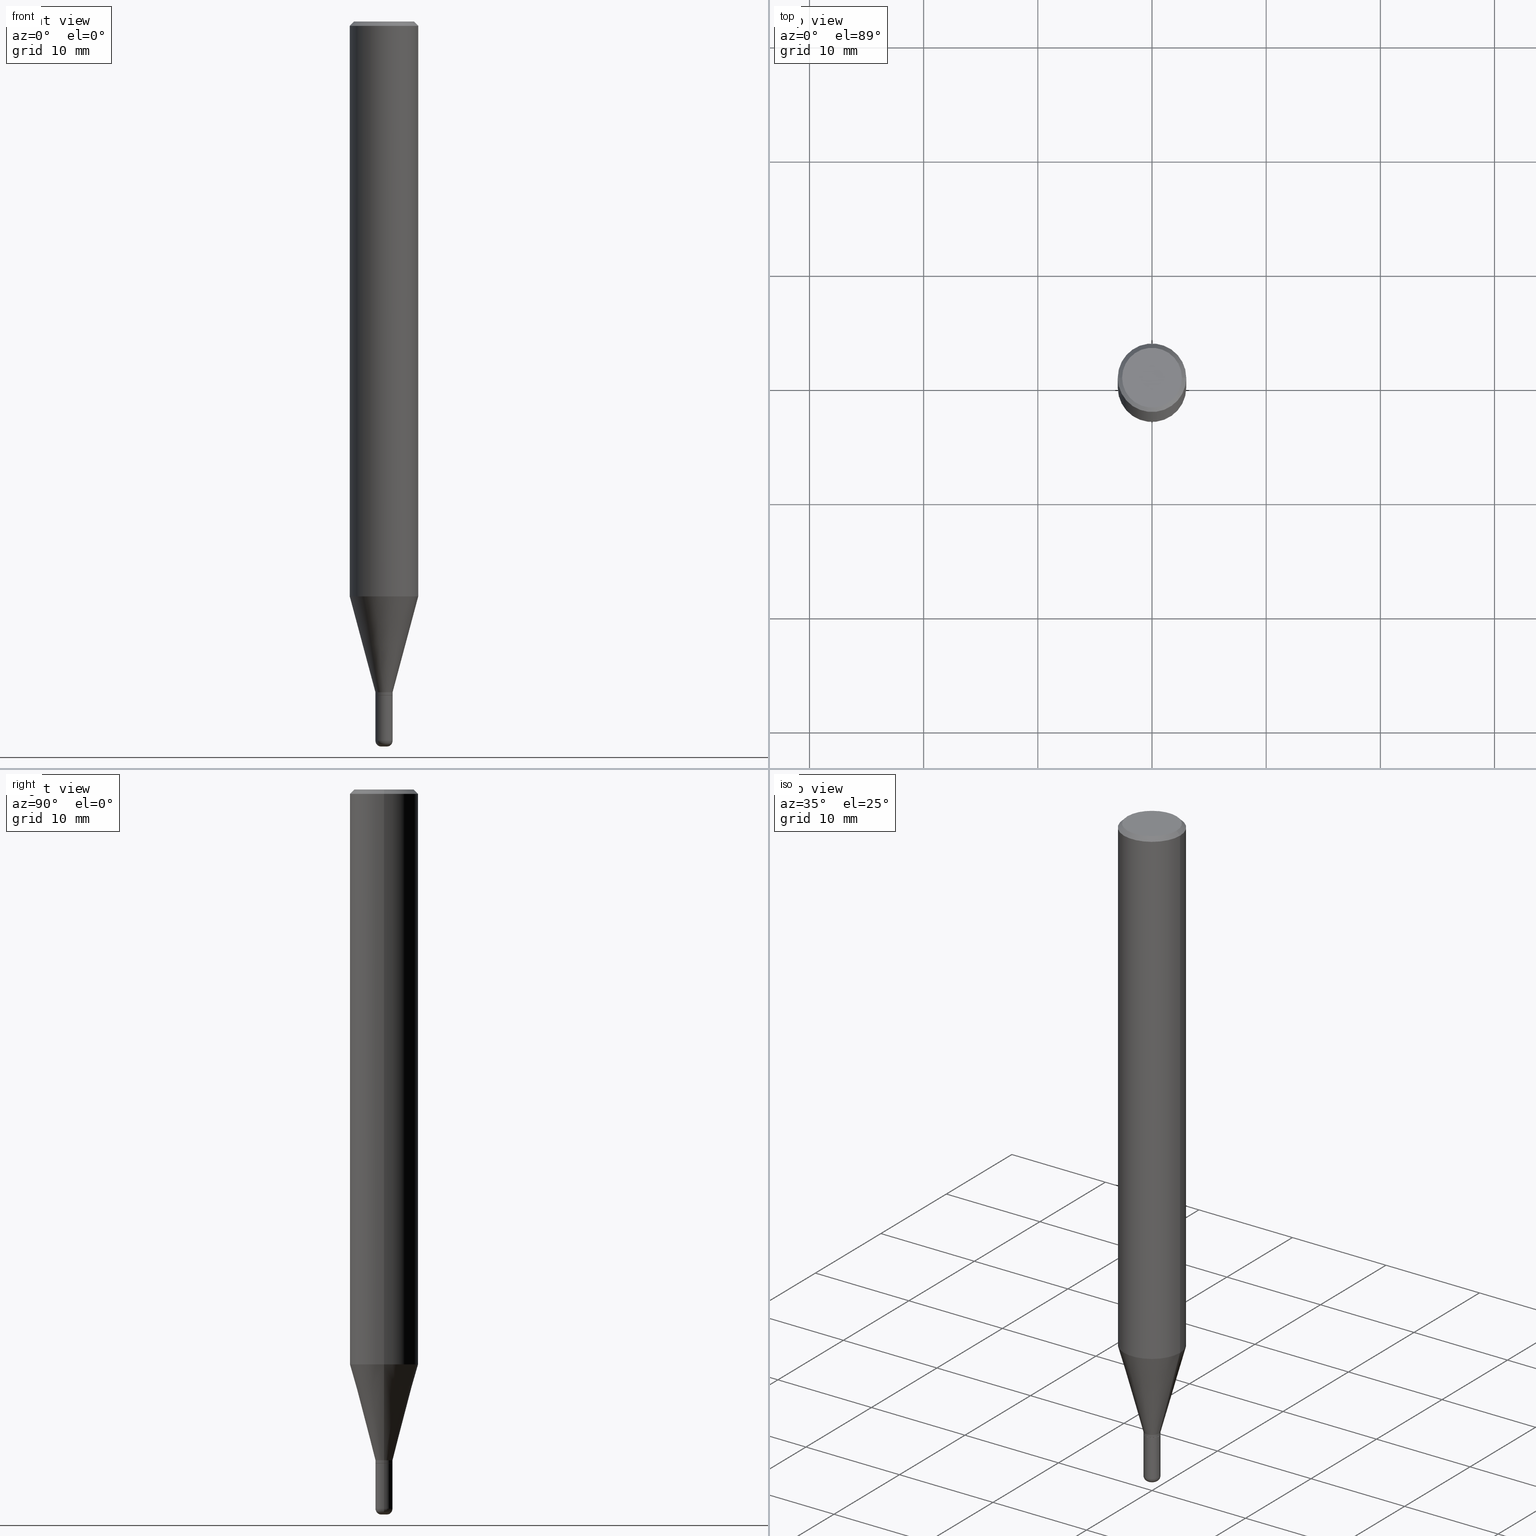
[diagram: canonical four-view strip — front | top / right | iso, engineering-drawing reading convention]
A machine part, canonical four-view strip (front | top / right | iso — engineering-drawing reading convention). The complete STEP part file that produces these views, byte-faithful:
ISO-10303-21;
HEADER;
FILE_DESCRIPTION (( 'STEP AP203' ),
    '1' );
FILE_NAME ('05314.STEP',
    '2024-02-29T19:36:06',
    ( '' ),
    ( '' ),
    'SwSTEP 2.0',
    'SolidWorks 2023',
    '' );
FILE_SCHEMA (( 'CONFIG_CONTROL_DESIGN' ));
ENDSEC;

DATA;
#1 = EDGE_CURVE ( 'NONE', #424, #325, #204, .T. ) ;
#2 = CARTESIAN_POINT ( 'NONE',  ( 0.009850000000000008055, -8.797485529483076128E-15, -2.500000000000000444 ) ) ;
#3 = CARTESIAN_POINT ( 'NONE',  ( 6.065496279980994755E-29, -8.659921164732655335E-15, -2.480300000000000171 ) ) ;
#4 = CALENDAR_DATE ( 2024, 29, 2 ) ;
#5 = DIRECTION ( 'NONE',  ( -2.445468806185136597E-29, 3.491481338843145583E-15, 1.000000000000000000 ) ) ;
#6 = AXIS2_PLACEMENT_3D ( 'NONE', #34, #358, #164 ) ;
#7 = DIRECTION ( 'NONE',  ( -2.445468806185136877E-29, 3.491481338843145188E-15, 1.000000000000000000 ) ) ;
#8 = ORIENTED_EDGE ( 'NONE', *, *, #10, .F. ) ;
#9 = VERTEX_POINT ( 'NONE', #513 ) ;
#10 = EDGE_CURVE ( 'NONE', #9, #352, #92, .T. ) ;
#11 = CALENDAR_DATE ( 2024, 29, 2 ) ;
#12 = ORIENTED_EDGE ( 'NONE', *, *, #58, .T. ) ;
#13 = ORIENTED_EDGE ( 'NONE', *, *, #248, .T. ) ;
#14 = EDGE_LOOP ( 'NONE', ( #99, #367, #64, #57 ) ) ;
#15 = DIRECTION ( 'NONE',  ( 1.000000000000000000, -6.982962677686266711E-15, 0.000000000000000000 ) ) ;
#16 = AXIS2_PLACEMENT_3D ( 'NONE', #440, #405, #480 ) ;
#17 = AXIS2_PLACEMENT_3D ( 'NONE', #516, #359, #439 ) ;
#18 = ORIENTED_EDGE ( 'NONE', *, *, #259, .T. ) ;
#19 = DATE_TIME_ROLE ( 'classification_date' ) ;
#20 = DIRECTION ( 'NONE',  ( 1.000000000000000000, -6.982962677686265922E-15, 4.876176775795935232E-29 ) ) ;
#21 = VERTEX_POINT ( 'NONE', #246 ) ;
#22 = VERTEX_POINT ( 'NONE', #128 ) ;
#23 = CARTESIAN_POINT ( 'NONE',  ( -0.009850000000000008055, -8.554335336975520830E-15, -2.500000000000000444 ) ) ;
#24 = DIRECTION ( 'NONE',  ( -2.445468806185136597E-29, 3.491481338843145583E-15, 1.000000000000000000 ) ) ;
#25 = ORIENTED_EDGE ( 'NONE', *, *, #221, .T. ) ;
#26 = DIRECTION ( 'NONE',  ( 1.000000000000000000, -6.982962677686270655E-15, 0.000000000000000000 ) ) ;
#27 = AXIS2_PLACEMENT_3D ( 'NONE', #83, #406, #435 ) ;
#28 = APPROVAL_STATUS ( 'not_yet_approved' ) ;
#29 = DIRECTION ( 'NONE',  ( 1.000000000000000000, -6.982962677686266711E-15, 0.000000000000000000 ) ) ;
#30 = ADVANCED_FACE ( 'NONE', ( #410 ), #207, .T. ) ;
#31 = ORIENTED_EDGE ( 'NONE', *, *, #115, .T. ) ;
#32 = CYLINDRICAL_SURFACE ( 'NONE', #286, 0.1180999999999999966 ) ;
#33 = ORIENTED_EDGE ( 'NONE', *, *, #380, .T. ) ;
#34 = CARTESIAN_POINT ( 'NONE',  ( 5.655880254944983613E-29, -8.075098040476427185E-15, -2.312800000000000189 ) ) ;
#35 = VECTOR ( 'NONE', #159, 39.37007874015748143 ) ;
#36 = DIRECTION ( 'NONE',  ( 1.000000000000000000, -6.982962677686265922E-15, 4.876176775795935793E-29 ) ) ;
#37 = CARTESIAN_POINT ( 'NONE',  ( 0.02904999999999997862, -8.312867919651644649E-15, -2.322799999999999976 ) ) ;
#38 = ORIENTED_EDGE ( 'NONE', *, *, #296, .T. ) ;
#39 = DIRECTION ( 'NONE',  ( 1.000000000000000000, -6.982962677686270655E-15, 0.000000000000000000 ) ) ;
#40 = MANIFOLD_SOLID_BREP ( 'Body-Move/Copy2[1]', #285 ) ;
#41 = CARTESIAN_POINT ( 'NONE',  ( 0.1180999999999999966, -8.770601123173951446E-16, -0.01499999999999995781 ) ) ;
#42 = VECTOR ( 'NONE', #363, 39.37007874015748143 ) ;
#43 = EDGE_CURVE ( 'NONE', #452, #352, #262, .T. ) ;
#44 = DIRECTION ( 'NONE',  ( -2.445468806185136877E-29, 3.491481338843145188E-15, 1.000000000000000000 ) ) ;
#45 = AXIS2_PLACEMENT_3D ( 'NONE', #171, #241, #127 ) ;
#46 = FACE_OUTER_BOUND ( 'NONE', #258, .T. ) ;
#47 = ORIENTED_EDGE ( 'NONE', *, *, #48, .T. ) ;
#48 = EDGE_CURVE ( 'NONE', #21, #301, #157, .T. ) ;
#49 = PERSON_AND_ORGANIZATION ( #427, #422 ) ;
#50 = FACE_OUTER_BOUND ( 'NONE', #292, .T. ) ;
#51 = ORIENTED_EDGE ( 'NONE', *, *, #58, .F. ) ;
#52 = CARTESIAN_POINT ( 'NONE',  ( 0.000000000000000000, 0.000000000000000000, 0.000000000000000000 ) ) ;
#53 = CIRCLE ( 'NONE', #271, 0.02954999999999999988 ) ;
#54 = LENGTH_MEASURE_WITH_UNIT ( LENGTH_MEASURE( 0.02539999999999999897 ), #97 );
#55 = ORIENTED_EDGE ( 'NONE', *, *, #469, .T. ) ;
#56 = DIRECTION ( 'NONE',  ( -2.445468806185136597E-29, 3.491481338843145583E-15, 1.000000000000000000 ) ) ;
#57 = ORIENTED_EDGE ( 'NONE', *, *, #481, .F. ) ;
#58 = EDGE_CURVE ( 'NONE', #325, #153, #240, .T. ) ;
#59 = CALENDAR_DATE ( 2024, 29, 2 ) ;
#60 = ORIENTED_EDGE ( 'NONE', *, *, #334, .T. ) ;
#61 = ORIENTED_EDGE ( 'NONE', *, *, #392, .T. ) ;
#62 = CARTESIAN_POINT ( 'NONE',  ( 6.113672015462842613E-29, -8.728703347107866520E-15, -2.500000000000000444 ) ) ;
#63 = AXIS2_PLACEMENT_3D ( 'NONE', #179, #5, #490 ) ;
#64 = ORIENTED_EDGE ( 'NONE', *, *, #418, .F. ) ;
#65 = CIRCLE ( 'NONE', #192, 0.1180999999999999966 ) ;
#66 = CARTESIAN_POINT ( 'NONE',  ( 0.1180999999999999966, -8.625970336194649143E-16, -0.01499999999999995781 ) ) ;
#67 = AXIS2_PLACEMENT_3D ( 'NONE', #213, #250, #249 ) ;
#68 = UNCERTAINTY_MEASURE_WITH_UNIT (LENGTH_MEASURE( 1.000000000000000082E-05 ), #291, 'distance_accuracy_value', 'NONE');
#69 = EDGE_CURVE ( 'NONE', #301, #21, #375, .T. ) ;
#70 = LINE ( 'NONE', #232, #35 ) ;
#71 = ORIENTED_EDGE ( 'NONE', *, *, #48, .F. ) ;
#72 = EDGE_CURVE ( 'NONE', #301, #80, #483, .T. ) ;
#73 = DIRECTION ( 'NONE',  ( 0.7071067811865483499, -7.319954787623257623E-15, -0.7071067811865466846 ) ) ;
#74 = SECURITY_CLASSIFICATION_LEVEL ( 'unclassified' ) ;
#75 = VERTEX_POINT ( 'NONE', #326 ) ;
#76 = AXIS2_PLACEMENT_3D ( 'NONE', #3, #172, #486 ) ;
#77 = CYLINDRICAL_SURFACE ( 'NONE', #320, 0.02955000000000008661 ) ;
#78 = CIRCLE ( 'NONE', #142, 0.01970000000000016877 ) ;
#79 = DATE_AND_TIME ( #398, #357 ) ;
#80 = VERTEX_POINT ( 'NONE', #88 ) ;
#81 = FACE_OUTER_BOUND ( 'NONE', #455, .T. ) ;
#82 = ORIENTED_EDGE ( 'NONE', *, *, #104, .T. ) ;
#83 = CARTESIAN_POINT ( 'NONE',  ( 7.199434520694541042E-16, 0.1031000000000000111, -3.599717260347282847E-16 ) ) ;
#84 = CARTESIAN_POINT ( 'NONE',  ( -0.02954999999999996518, -7.865132662059317828E-15, -2.312800000000000189 ) ) ;
#85 = ORIENTED_EDGE ( 'NONE', *, *, #104, .F. ) ;
#86 = VECTOR ( 'NONE', #355, 39.37007874015748143 ) ;
#87 = DIRECTION ( 'NONE',  ( 1.000000000000000000, -6.982962677686287221E-15, 4.883557194083120188E-29 ) ) ;
#88 = CARTESIAN_POINT ( 'NONE',  ( -0.02954999999999999988, -8.175001630881646938E-15, -2.322799999999999976 ) ) ;
#89 = LINE ( 'NONE', #404, #201 ) ;
#90 = DIRECTION ( 'NONE',  ( 1.000000000000000000, -6.982962677686288010E-15, 0.000000000000000000 ) ) ;
#91 = CARTESIAN_POINT ( 'NONE',  ( 5.680334943006836279E-29, -8.110012853864858834E-15, -2.322799999999999976 ) ) ;
#92 = LINE ( 'NONE', #166, #270 ) ;
#93 = AXIS2_PLACEMENT_3D ( 'NONE', #434, #276, #479 ) ;
#94 = DATE_AND_TIME ( #11, #234 ) ;
#95 = EDGE_LOOP ( 'NONE', ( #272, #12, #265, #85 ) ) ;
#96 = DIRECTION ( 'NONE',  ( -2.445468806185136597E-29, 3.491481338843145583E-15, 1.000000000000000000 ) ) ;
#97 =( LENGTH_UNIT ( ) NAMED_UNIT ( * ) SI_UNIT ( $, .METRE. ) );
#98 = EDGE_LOOP ( 'NONE', ( #108, #33, #220, #382 ) ) ;
#99 = ORIENTED_EDGE ( 'NONE', *, *, #163, .T. ) ;
#100 = AXIS2_PLACEMENT_3D ( 'NONE', #289, #56, #374 ) ;
#101 = EDGE_LOOP ( 'NONE', ( #55, #18, #71, #147 ) ) ;
#102 = COORDINATED_UNIVERSAL_TIME_OFFSET ( 5, 0, .BEHIND. ) ;
#103 = EDGE_CURVE ( 'NONE', #75, #452, #514, .T. ) ;
#104 = EDGE_CURVE ( 'NONE', #9, #75, #336, .T. ) ;
#105 = ORIENTED_EDGE ( 'NONE', *, *, #72, .T. ) ;
#106 = AXIS2_PLACEMENT_3D ( 'NONE', #370, #131, #126 ) ;
#107 = EDGE_LOOP ( 'NONE', ( #31, #195 ) ) ;
#108 = ORIENTED_EDGE ( 'NONE', *, *, #319, .F. ) ;
#109 = AXIS2_PLACEMENT_3D ( 'NONE', #116, #237, #26 ) ;
#110 = FACE_OUTER_BOUND ( 'NONE', #95, .T. ) ;
#111 = CC_DESIGN_APPROVAL ( #428, ( #318 ) ) ;
#112 = ORIENTED_EDGE ( 'NONE', *, *, #354, .T. ) ;
#113 = DIRECTION ( 'NONE',  ( 2.445468806185136597E-29, -3.491481338843145583E-15, -1.000000000000000000 ) ) ;
#114 = CARTESIAN_POINT ( 'NONE',  ( 0.02954999999999996518, -8.281444587602056007E-15, -2.312800000000000189 ) ) ;
#115 = EDGE_CURVE ( 'NONE', #379, #472, #436, .T. ) ;
#116 = CARTESIAN_POINT ( 'NONE',  ( 5.655880254944983613E-29, -8.075098040476427185E-15, -2.312800000000000189 ) ) ;
#117 = ORIENTED_EDGE ( 'NONE', *, *, #300, .T. ) ;
#118 = FACE_OUTER_BOUND ( 'NONE', #139, .T. ) ;
#119 = EDGE_LOOP ( 'NONE', ( #8, #82, #309, #313 ) ) ;
#120 = PLANE ( 'NONE',  #453 ) ;
#121 = ADVANCED_FACE ( 'NONE', ( #373 ), #288, .T. ) ;
#122 = CYLINDRICAL_SURFACE ( 'NONE', #45, 0.02954999999999997212 ) ;
#123 = DIRECTION ( 'NONE',  ( -2.445468806185136597E-29, 3.491481338843145583E-15, 1.000000000000000000 ) ) ;
#124 = AXIS2_PLACEMENT_3D ( 'NONE', #368, #280, #39 ) ;
#125 = AXIS2_PLACEMENT_3D ( 'NONE', #239, #315, #87 ) ;
#126 = DIRECTION ( 'NONE',  ( 1.000000000000000000, -6.982962677686266711E-15, 0.000000000000000000 ) ) ;
#127 = DIRECTION ( 'NONE',  ( 1.000000000000000000, -6.982962677686266711E-15, 4.876176775795935793E-29 ) ) ;
#128 = CARTESIAN_POINT ( 'NONE',  ( 0.02954999999999999988, -8.316359400990487656E-15, -2.322799999999999976 ) ) ;
#129 = CARTESIAN_POINT ( 'NONE',  ( -0.02954999999999997906, -7.898301734778328762E-15, -2.322300000000000253 ) ) ;
#130 = ORIENTED_EDGE ( 'NONE', *, *, #163, .F. ) ;
#131 = DIRECTION ( 'NONE',  ( -2.445468806185136597E-29, 3.491481338843145583E-15, 1.000000000000000000 ) ) ;
#132 =( NAMED_UNIT ( * ) SI_UNIT ( $, .STERADIAN. ) SOLID_ANGLE_UNIT ( ) );
#133 = VECTOR ( 'NONE', #443, 39.37007874015748143 ) ;
#134 = ORIENTED_EDGE ( 'NONE', *, *, #438, .T. ) ;
#135 = ORIENTED_EDGE ( 'NONE', *, *, #319, .T. ) ;
#136 = DIRECTION ( 'NONE',  ( -2.445468806185136597E-29, 3.491481338843145583E-15, 1.000000000000000000 ) ) ;
#137 = ADVANCED_FACE ( 'NONE', ( #222 ), #477, .T. ) ;
#138 = CARTESIAN_POINT ( 'NONE',  ( 3.668203209277694140E-31, -5.237222008264703607E-17, -0.01499999999999995781 ) ) ;
#139 = EDGE_LOOP ( 'NONE', ( #181, #38, #275, #51 ) ) ;
#140 = ORIENTED_EDGE ( 'NONE', *, *, #469, .F. ) ;
#141 = CLOSED_SHELL ( 'NONE', ( #343, #339, #197, #215, #489, #283, #121, #205, #396, #371, #137, #238 ) ) ;
#142 = AXIS2_PLACEMENT_3D ( 'NONE', #211, #441, #482 ) ;
#143 = PRODUCT_RELATED_PRODUCT_CATEGORY ( 'detail', '', ( #344 ) ) ;
#144 = LOCAL_TIME ( 14, 36, 6.000000000000000000, #295 ) ;
#145 = PERSON_AND_ORGANIZATION_ROLE ( 'creator' ) ;
#146 = CARTESIAN_POINT ( 'NONE',  ( 5.679112208603743477E-29, -8.108267113195438120E-15, -2.322300000000000253 ) ) ;
#147 = ORIENTED_EDGE ( 'NONE', *, *, #354, .F. ) ;
#148 = DIRECTION ( 'NONE',  ( -2.445468806185136597E-29, 3.491481338843145583E-15, 1.000000000000000000 ) ) ;
#149 = PRODUCT_DEFINITION_SHAPE ( 'NONE', 'NONE',  #318 ) ;
#150 = PERSON_AND_ORGANIZATION ( #427, #422 ) ;
#151 = DIRECTION ( 'NONE',  ( -2.445468806185136597E-29, 3.491481338843145583E-15, 1.000000000000000000 ) ) ;
#152 = PERSON_AND_ORGANIZATION ( #427, #422 ) ;
#153 = VERTEX_POINT ( 'NONE', #114 ) ;
#154 = DIRECTION ( 'NONE',  ( 1.000000000000000000, -6.982962677686266711E-15, 0.000000000000000000 ) ) ;
#155 = CARTESIAN_POINT ( 'NONE',  ( 0.000000000000000000, 0.000000000000000000, 0.000000000000000000 ) ) ;
#156 = DIRECTION ( 'NONE',  ( -2.445468806185136597E-29, 3.491481338843145583E-15, 1.000000000000000000 ) ) ;
#157 = CIRCLE ( 'NONE', #16, 0.02955000000000016988 ) ;
#158 = EDGE_CURVE ( 'NONE', #328, #340, #420, .T. ) ;
#159 = DIRECTION ( 'NONE',  ( 0.7071067811866199593, -2.468850131083015945E-15, 0.7071067811864750752 ) ) ;
#160 = CIRCLE ( 'NONE', #415, 0.009850000000000008055 ) ;
#161 = APPLICATION_CONTEXT ( 'configuration controlled 3d designs of mechanical parts and assemblies' ) ;
#162 = LINE ( 'NONE', #282, #133 ) ;
#163 = EDGE_CURVE ( 'NONE', #170, #424, #199, .T. ) ;
#164 = DIRECTION ( 'NONE',  ( 1.000000000000000000, -6.982962677686270655E-15, 0.000000000000000000 ) ) ;
#165 = DIRECTION ( 'NONE',  ( -2.445468806185136597E-29, 3.491481338843145583E-15, 1.000000000000000000 ) ) ;
#166 = CARTESIAN_POINT ( 'NONE',  ( -0.1180999999999999966, 8.391509709326782957E-16, -5.809262341591043784E-30 ) ) ;
#167 = CONICAL_SURFACE ( 'NONE', #17, 0.02904999999999997862, 0.7853981633975507526 ) ;
#168 = PRODUCT_DEFINITION_FORMATION_WITH_SPECIFIED_SOURCE ( 'ANY', '', #344, .NOT_KNOWN. ) ;
#169 = DIRECTION ( 'NONE',  ( -2.445468806185136877E-29, 3.491481338843145188E-15, 1.000000000000000000 ) ) ;
#170 = VERTEX_POINT ( 'NONE', #468 ) ;
#171 = CARTESIAN_POINT ( 'NONE',  ( 0.000000000000000000, 0.000000000000000000, 0.000000000000000000 ) ) ;
#172 = DIRECTION ( 'NONE',  ( -2.445468806185136597E-29, 3.491481338843145583E-15, 1.000000000000000000 ) ) ;
#173 = ORIENTED_EDGE ( 'NONE', *, *, #389, .T. ) ;
#174 = DATE_AND_TIME ( #4, #387 ) ;
#175 = VECTOR ( 'NONE', #44, 39.37007874015748143 ) ;
#176 = CIRCLE ( 'NONE', #463, 0.1180999999999999966 ) ;
#177 = CIRCLE ( 'NONE', #278, 0.02904999999999997862 ) ;
#178 = SECURITY_CLASSIFICATION ( '', '', #74 ) ;
#179 = CARTESIAN_POINT ( 'NONE',  ( 0.000000000000000000, 0.000000000000000000, 0.000000000000000000 ) ) ;
#180 = DIRECTION ( 'NONE',  ( -2.438088387897960049E-29, 3.491481338843145188E-15, 1.000000000000000000 ) ) ;
#181 = ORIENTED_EDGE ( 'NONE', *, *, #1, .F. ) ;
#182 = APPROVAL_DATE_TIME ( #94, #428 ) ;
#183 = ORIENTED_EDGE ( 'NONE', *, *, #304, .F. ) ;
#184 = DIRECTION ( 'NONE',  ( -2.445468806185136597E-29, 3.491481338843145583E-15, 1.000000000000000000 ) ) ;
#185 = CIRCLE ( 'NONE', #471, 0.1031000000000000111 ) ;
#186 = ORIENTED_EDGE ( 'NONE', *, *, #389, .F. ) ;
#187 = ORIENTED_EDGE ( 'NONE', *, *, #259, .F. ) ;
#188 = CARTESIAN_POINT ( 'NONE',  ( 5.679112208603743477E-29, -8.108267113195438120E-15, -2.322300000000000253 ) ) ;
#189 = ORIENTED_EDGE ( 'NONE', *, *, #115, .F. ) ;
#190 = ORIENTED_EDGE ( 'NONE', *, *, #308, .F. ) ;
#191 = DIRECTION ( 'NONE',  ( 1.000000000000000000, -6.982962677686266711E-15, 4.876176775795936353E-29 ) ) ;
#192 = AXIS2_PLACEMENT_3D ( 'NONE', #504, #156, #465 ) ;
#193 = ORIENTED_EDGE ( 'NONE', *, *, #392, .F. ) ;
#194 = CARTESIAN_POINT ( 'NONE',  ( -0.009850000000000002850, -8.589932705260284498E-15, -2.480300000000000171 ) ) ;
#195 = ORIENTED_EDGE ( 'NONE', *, *, #308, .T. ) ;
#196 = CARTESIAN_POINT ( 'NONE',  ( -0.02955000000000016988, -8.175001630881645361E-15, -2.480300000000000171 ) ) ;
#197 = ADVANCED_FACE ( 'NONE', ( #269 ), #414, .T. ) ;
#198 = DIRECTION ( 'NONE',  ( -2.445468806185136597E-29, 3.491481338843145583E-15, 1.000000000000000000 ) ) ;
#199 = CIRCLE ( 'NONE', #487, 0.02954999999999997906 ) ;
#200 = CARTESIAN_POINT ( 'NONE',  ( 5.680334943006836279E-29, -8.110012853864858834E-15, -2.322799999999999976 ) ) ;
#201 = VECTOR ( 'NONE', #169, 39.37007874015748143 ) ;
#202 = FACE_OUTER_BOUND ( 'NONE', #517, .T. ) ;
#203 = DIRECTION ( 'NONE',  ( -2.445468806185136597E-29, 3.491481338843145583E-15, 1.000000000000000000 ) ) ;
#204 = LINE ( 'NONE', #444, #430 ) ;
#205 = ADVANCED_FACE ( 'NONE', ( #433 ), #293, .T. ) ;
#206 = DIRECTION ( 'NONE',  ( 1.000000000000000000, -6.982962677686261977E-15, 0.000000000000000000 ) ) ;
#207 = TOROIDAL_SURFACE ( 'NONE', #76, 0.009850000000000002850, 0.01970000000000016877 ) ;
#208 = ORIENTED_EDGE ( 'NONE', *, *, #274, .F. ) ;
#209 = CIRCLE ( 'NONE', #6, 0.02954999999999996518 ) ;
#210 = CARTESIAN_POINT ( 'NONE',  ( 4.847718600032148277E-29, -6.921257382292565925E-15, -1.982326900989775709 ) ) ;
#211 = CARTESIAN_POINT ( 'NONE',  ( 0.009850000000000002850, -8.728703347107864943E-15, -2.480300000000000171 ) ) ;
#212 = CC_DESIGN_PERSON_AND_ORGANIZATION_ASSIGNMENT ( #150, #305, ( #178 ) ) ;
#213 = CARTESIAN_POINT ( 'NONE',  ( 0.000000000000000000, 0.000000000000000000, 0.000000000000000000 ) ) ;
#214 = CARTESIAN_POINT ( 'NONE',  ( 6.199188644380781470E-29, -8.606238667193129794E-15, -2.500000000000000000 ) ) ;
#215 = ADVANCED_FACE ( 'NONE', ( #81 ), #32, .T. ) ;
#216 = AXIS2_PLACEMENT_3D ( 'NONE', #91, #409, #242 ) ;
#217 = DIRECTION ( 'NONE',  ( 1.000000000000000000, -6.982962677686265922E-15, 4.876176775795935232E-29 ) ) ;
#218 = MECHANICAL_CONTEXT ( 'NONE', #161, 'mechanical' ) ;
#219 = ORIENTED_EDGE ( 'NONE', *, *, #43, .T. ) ;
#220 = ORIENTED_EDGE ( 'NONE', *, *, #274, .T. ) ;
#221 = EDGE_CURVE ( 'NONE', #472, #452, #391, .T. ) ;
#222 = FACE_OUTER_BOUND ( 'NONE', #98, .T. ) ;
#223 = DATE_TIME_ROLE ( 'creation_date' ) ;
#224 = AXIS2_PLACEMENT_3D ( 'NONE', #52, #96, #217 ) ;
#225 = VECTOR ( 'NONE', #7, 39.37007874015748143 ) ;
#226 = DIRECTION ( 'NONE',  ( 0.2588190451025206840, 1.565188264969626504E-15, 0.9659258262890682012 ) ) ;
#227 = ORIENTED_EDGE ( 'NONE', *, *, #72, .F. ) ;
#228 = DIMENSIONAL_EXPONENTS ( 1.000000000000000000, 0.000000000000000000, 0.000000000000000000, 0.000000000000000000, 0.000000000000000000, 0.000000000000000000, 0.000000000000000000 ) ;
#229 = ADVANCED_FACE ( 'NONE', ( #499 ), #77, .T. ) ;
#230 = EDGE_LOOP ( 'NONE', ( #47, #105, #186, #193 ) ) ;
#231 = CARTESIAN_POINT ( 'NONE',  ( -0.02954999999999996518, -6.973619536709603567E-15, -2.312800000000000189 ) ) ;
#232 = CARTESIAN_POINT ( 'NONE',  ( 0.02904999999999997862, -8.312867919651644649E-15, -2.322799999999999976 ) ) ;
#233 = PERSON_AND_ORGANIZATION_ROLE ( 'creator' ) ;
#234 = LOCAL_TIME ( 14, 36, 6.000000000000000000, #447 ) ;
#235 = DIRECTION ( 'NONE',  ( 7.105427357601001859E-15, 1.000000000000000000, -3.491481338843145583E-15 ) ) ;
#236 = APPROVAL ( #28, 'UNSPECIFIED' ) ;
#237 = DIRECTION ( 'NONE',  ( -2.445468806185136597E-29, 3.491481338843145583E-15, 1.000000000000000000 ) ) ;
#238 = ADVANCED_FACE ( 'NONE', ( #118 ), #502, .T. ) ;
#239 = CARTESIAN_POINT ( 'NONE',  ( 6.065496279980994755E-29, -8.659921164732655335E-15, -2.480300000000000171 ) ) ;
#240 = CIRCLE ( 'NONE', #124, 0.02954999999999996518 ) ;
#241 = DIRECTION ( 'NONE',  ( -2.445468806185136597E-29, 3.491481338843145583E-15, 1.000000000000000000 ) ) ;
#242 = DIRECTION ( 'NONE',  ( 1.000000000000000000, -6.982962677686249356E-15, 0.000000000000000000 ) ) ;
#243 = PLANE ( 'NONE',  #27 ) ;
#244 = CARTESIAN_POINT ( 'NONE',  ( -0.02955000000000008661, 2.099653784171102204E-16, -1.453545319170328929E-30 ) ) ;
#245 = CARTESIAN_POINT ( 'NONE',  ( -0.1031000000000000111, 7.461295621107775452E-16, -5.126375781645864005E-30 ) ) ;
#246 = CARTESIAN_POINT ( 'NONE',  ( 0.02955000000000016988, -8.866267711858285735E-15, -2.480300000000000171 ) ) ;
#247 = AXIS2_PLACEMENT_3D ( 'NONE', #342, #462, #266 ) ;
#248 = EDGE_CURVE ( 'NONE', #80, #22, #53, .T. ) ;
#249 = DIRECTION ( 'NONE',  ( 1.000000000000000000, 0.000000000000000000, 0.000000000000000000 ) ) ;
#250 = DIRECTION ( 'NONE',  ( 0.000000000000000000, 0.000000000000000000, 1.000000000000000000 ) ) ;
#251 = EDGE_LOOP ( 'NONE', ( #173, #13 ) ) ;
#252 = AXIS2_PLACEMENT_3D ( 'NONE', #303, #113, #399 ) ;
#253 = AXIS2_PLACEMENT_3D ( 'NONE', #194, #235, #505 ) ;
#254 = LOCAL_TIME ( 14, 36, 6.000000000000000000, #460 ) ;
#255 = PLANE ( 'NONE',  #508 ) ;
#256 = ORIENTED_EDGE ( 'NONE', *, *, #418, .T. ) ;
#257 = PERSON_AND_ORGANIZATION ( #427, #422 ) ;
#258 = EDGE_LOOP ( 'NONE', ( #290, #412 ) ) ;
#259 = EDGE_CURVE ( 'NONE', #328, #301, #408, .T. ) ;
#260 = ORIENTED_EDGE ( 'NONE', *, *, #510, .T. ) ;
#261 = FACE_OUTER_BOUND ( 'NONE', #333, .T. ) ;
#262 = CIRCLE ( 'NONE', #106, 0.1180999999999999966 ) ;
#263 = APPROVAL_PERSON_ORGANIZATION ( #49, #401, #372 ) ;
#264 = APPROVAL_ROLE ( '' ) ;
#265 = ORIENTED_EDGE ( 'NONE', *, *, #304, .T. ) ;
#266 = DIRECTION ( 'NONE',  ( 1.000000000000000000, -6.982962677686266711E-15, 4.876176775795935793E-29 ) ) ;
#267 = DIRECTION ( 'NONE',  ( -1.000000000000000000, 6.982962677686266711E-15, 0.000000000000000000 ) ) ;
#268 = DIRECTION ( 'NONE',  ( 1.000000000000000000, -6.982962677686224112E-15, 0.000000000000000000 ) ) ;
#269 = FACE_OUTER_BOUND ( 'NONE', #495, .T. ) ;
#270 = VECTOR ( 'NONE', #322, 39.37007874015748143 ) ;
#271 = AXIS2_PLACEMENT_3D ( 'NONE', #314, #393, #429 ) ;
#272 = ORIENTED_EDGE ( 'NONE', *, *, #438, .F. ) ;
#273 = DIRECTION ( 'NONE',  ( -2.445468806185136597E-29, 3.491481338843145583E-15, 1.000000000000000000 ) ) ;
#274 = EDGE_CURVE ( 'NONE', #450, #170, #70, .T. ) ;
#275 = ORIENTED_EDGE ( 'NONE', *, *, #481, .T. ) ;
#276 = DIRECTION ( 'NONE',  ( 2.438088387897960049E-29, -3.491481338843145188E-15, -1.000000000000000000 ) ) ;
#277 = FACE_OUTER_BOUND ( 'NONE', #101, .T. ) ;
#278 = AXIS2_PLACEMENT_3D ( 'NONE', #366, #203, #361 ) ;
#279 = FACE_OUTER_BOUND ( 'NONE', #107, .T. ) ;
#280 = DIRECTION ( 'NONE',  ( -2.445468806185136597E-29, 3.491481338843145583E-15, 1.000000000000000000 ) ) ;
#281 = DIRECTION ( 'NONE',  ( -2.438088387897960049E-29, 3.491481338843145188E-15, 1.000000000000000000 ) ) ;
#282 = CARTESIAN_POINT ( 'NONE',  ( -0.1180999999999999966, 7.723156721521010848E-16, -0.01499999999999995781 ) ) ;
#283 = ADVANCED_FACE ( 'NONE', ( #110 ), #421, .T. ) ;
#284 = PERSON_AND_ORGANIZATION ( #427, #422 ) ;
#285 = CLOSED_SHELL ( 'NONE', ( #360, #229, #383, #323, #30, #503 ) ) ;
#286 = AXIS2_PLACEMENT_3D ( 'NONE', #155, #395, #191 ) ;
#287 = CC_DESIGN_APPROVAL ( #401, ( #168 ) ) ;
#288 = CYLINDRICAL_SURFACE ( 'NONE', #63, 0.1180999999999999966 ) ;
#289 = CARTESIAN_POINT ( 'NONE',  ( 5.655880254944983613E-29, -8.075098040476427185E-15, -2.312800000000000189 ) ) ;
#290 = ORIENTED_EDGE ( 'NONE', *, *, #457, .F. ) ;
#291 =( CONVERSION_BASED_UNIT ( 'INCH', #54 ) LENGTH_UNIT ( ) NAMED_UNIT ( #228 ) );
#292 = EDGE_LOOP ( 'NONE', ( #140, #388 ) ) ;
#293 = CONICAL_SURFACE ( 'NONE', #446, 0.1180999999999999966, 0.7853981633974495002 ) ;
#294 = APPROVAL_PERSON_ORGANIZATION ( #464, #236, #264 ) ;
#295 = COORDINATED_UNIVERSAL_TIME_OFFSET ( 5, 0, .BEHIND. ) ;
#296 = EDGE_CURVE ( 'NONE', #424, #170, #437, .T. ) ;
#297 = ORIENTED_EDGE ( 'NONE', *, *, #69, .T. ) ;
#298 = ORIENTED_EDGE ( 'NONE', *, *, #300, .F. ) ;
#299 = CC_DESIGN_PERSON_AND_ORGANIZATION_ASSIGNMENT ( #345, #390, ( #168 ) ) ;
#300 = EDGE_CURVE ( 'NONE', #75, #9, #65, .T. ) ;
#301 = VERTEX_POINT ( 'NONE', #196 ) ;
#302 = ORIENTED_EDGE ( 'NONE', *, *, #457, .T. ) ;
#303 = CARTESIAN_POINT ( 'NONE',  ( 3.668203209277694140E-31, -5.237222008264703607E-17, -0.01499999999999995781 ) ) ;
#304 = EDGE_CURVE ( 'NONE', #153, #75, #425, .T. ) ;
#305 = PERSON_AND_ORGANIZATION_ROLE ( 'classification_officer' ) ;
#306 = DIRECTION ( 'NONE',  ( 2.445468806185136597E-29, -3.491481338843145583E-15, -1.000000000000000000 ) ) ;
#307 = CC_DESIGN_PERSON_AND_ORGANIZATION_ASSIGNMENT ( #496, #145, ( #318 ) ) ;
#308 = EDGE_CURVE ( 'NONE', #472, #379, #185, .T. ) ;
#309 = ORIENTED_EDGE ( 'NONE', *, *, #103, .T. ) ;
#310 = DIRECTION ( 'NONE',  ( 1.000000000000000000, -6.982962677686266711E-15, 4.876176775795935793E-29 ) ) ;
#311 = EDGE_LOOP ( 'NONE', ( #256, #134, #298, #183 ) ) ;
#312 = DIRECTION ( 'NONE',  ( 1.000000000000000000, -6.982962677686266711E-15, 4.876176775795935793E-29 ) ) ;
#313 = ORIENTED_EDGE ( 'NONE', *, *, #510, .F. ) ;
#314 = CARTESIAN_POINT ( 'NONE',  ( 5.680334943006836279E-29, -8.110012853864858834E-15, -2.322799999999999976 ) ) ;
#315 = DIRECTION ( 'NONE',  ( -2.445468806185136597E-29, 3.491481338843145583E-15, 1.000000000000000000 ) ) ;
#316 = CC_DESIGN_PERSON_AND_ORGANIZATION_ASSIGNMENT ( #152, #233, ( #168 ) ) ;
#317 = DIRECTION ( 'NONE',  ( -0.2588190451025206840, 5.211531920934545520E-15, 0.9659258262890682012 ) ) ;
#318 = PRODUCT_DEFINITION ( 'UNKNOWN', '', #168, #466 ) ;
#319 = EDGE_CURVE ( 'NONE', #432, #424, #400, .T. ) ;
#320 = AXIS2_PLACEMENT_3D ( 'NONE', #346, #198, #310 ) ;
#321 = DIRECTION ( 'NONE',  ( 1.000000000000000000, -6.982962677686224112E-15, 0.000000000000000000 ) ) ;
#322 = DIRECTION ( 'NONE',  ( -2.445468806185136877E-29, 3.491481338843145188E-15, 1.000000000000000000 ) ) ;
#323 = ADVANCED_FACE ( 'NONE', ( #261 ), #419, .T. ) ;
#324 = CARTESIAN_POINT ( 'NONE',  ( 0.1031000000000000111, -7.849571885948548761E-16, 5.261941714946591942E-30 ) ) ;
#325 = VERTEX_POINT ( 'NONE', #231 ) ;
#326 = CARTESIAN_POINT ( 'NONE',  ( 0.1180999999999999966, -7.745945274527314976E-15, -1.982326900989775709 ) ) ;
#327 = CARTESIAN_POINT ( 'NONE',  ( -0.1180999999999999966, -2.647663830254927713E-15, -0.01499999999999995781 ) ) ;
#328 = VERTEX_POINT ( 'NONE', #23 ) ;
#329 = CIRCLE ( 'NONE', #216, 0.02904999999999997862 ) ;
#330 = DIRECTION ( 'NONE',  ( 1.000000000000000000, -6.982962677686265133E-15, 0.000000000000000000 ) ) ;
#331 = ORIENTED_EDGE ( 'NONE', *, *, #43, .F. ) ;
#332 = PERSON_AND_ORGANIZATION_ROLE ( 'design_owner' ) ;
#333 = EDGE_LOOP ( 'NONE', ( #227, #297, #61, #494 ) ) ;
#334 = EDGE_CURVE ( 'NONE', #379, #352, #162, .T. ) ;
#335 = DIRECTION ( 'NONE',  ( 1.000000000000000000, -6.982962677686265922E-15, 4.876176775795935793E-29 ) ) ;
#336 = CIRCLE ( 'NONE', #445, 0.1180999999999999966 ) ;
#337 = VECTOR ( 'NONE', #73, 39.37007874015748143 ) ;
#338 = APPROVAL_PERSON_ORGANIZATION ( #257, #428, #378 ) ;
#339 = ADVANCED_FACE ( 'NONE', ( #202 ), #167, .T. ) ;
#340 = VERTEX_POINT ( 'NONE', #2 ) ;
#341 = SHAPE_DEFINITION_REPRESENTATION ( #149, #475 ) ;
#342 = CARTESIAN_POINT ( 'NONE',  ( 0.000000000000000000, 0.000000000000000000, 0.000000000000000000 ) ) ;
#343 = ADVANCED_FACE ( 'NONE', ( #476 ), #122, .T. ) ;
#344 = PRODUCT ( '05314', '05314', '', ( #218 ) ) ;
#345 = PERSON_AND_ORGANIZATION ( #427, #422 ) ;
#346 = CARTESIAN_POINT ( 'NONE',  ( 0.000000000000000000, 0.000000000000000000, 0.000000000000000000 ) ) ;
#347 = AXIS2_PLACEMENT_3D ( 'NONE', #62, #184, #268 ) ;
#348 = VECTOR ( 'NONE', #226, 39.37007874015748854 ) ;
#349 = DATE_AND_TIME ( #467, #254 ) ;
#350 = DIRECTION ( 'NONE',  ( -2.445468806185136597E-29, 3.491481338843145583E-15, 1.000000000000000000 ) ) ;
#351 = CC_DESIGN_PERSON_AND_ORGANIZATION_ASSIGNMENT ( #284, #332, ( #344 ) ) ;
#352 = VERTEX_POINT ( 'NONE', #327 ) ;
#353 = CARTESIAN_POINT ( 'NONE',  ( 3.668203209277694140E-31, -5.237222008264703607E-17, -0.01499999999999995781 ) ) ;
#354 = EDGE_CURVE ( 'NONE', #340, #21, #78, .T. ) ;
#355 = DIRECTION ( 'NONE',  ( -0.7071067811866199593, 7.493145998870616062E-15, 0.7071067811864750752 ) ) ;
#356 = TOROIDAL_SURFACE ( 'NONE', #125, 0.009850000000000002850, 0.01970000000000016877 ) ;
#357 = LOCAL_TIME ( 14, 36, 6.000000000000000000, #500 ) ;
#358 = DIRECTION ( 'NONE',  ( -2.445468806185136597E-29, 3.491481338843145583E-15, 1.000000000000000000 ) ) ;
#359 = DIRECTION ( 'NONE',  ( -2.445468806185136597E-29, 3.491481338843145583E-15, 1.000000000000000000 ) ) ;
#360 = ADVANCED_FACE ( 'NONE', ( #277 ), #356, .T. ) ;
#361 = DIRECTION ( 'NONE',  ( 1.000000000000000000, -6.982962677686249356E-15, 0.000000000000000000 ) ) ;
#362 = DIRECTION ( 'NONE',  ( -2.445468806185136877E-29, 3.491481338843145188E-15, 1.000000000000000000 ) ) ;
#363 = DIRECTION ( 'NONE',  ( -2.445468806185136877E-29, 3.491481338843145188E-15, 1.000000000000000000 ) ) ;
#364 = AXIS2_PLACEMENT_3D ( 'NONE', #442, #518, #90 ) ;
#365 = CIRCLE ( 'NONE', #431, 0.02954999999999999988 ) ;
#366 = CARTESIAN_POINT ( 'NONE',  ( 5.680334943006836279E-29, -8.110012853864858834E-15, -2.322799999999999976 ) ) ;
#367 = ORIENTED_EDGE ( 'NONE', *, *, #1, .T. ) ;
#368 = CARTESIAN_POINT ( 'NONE',  ( 5.655880254944983613E-29, -8.075098040476427185E-15, -2.312800000000000189 ) ) ;
#369 = FACE_OUTER_BOUND ( 'NONE', #251, .T. ) ;
#370 = CARTESIAN_POINT ( 'NONE',  ( 3.668203209277694140E-31, -5.237222008264703607E-17, -0.01499999999999995781 ) ) ;
#371 = ADVANCED_FACE ( 'NONE', ( #46 ), #120, .F. ) ;
#372 = APPROVAL_ROLE ( '' ) ;
#373 = FACE_OUTER_BOUND ( 'NONE', #119, .T. ) ;
#374 = DIRECTION ( 'NONE',  ( 1.000000000000000000, -6.982962677686270655E-15, 0.000000000000000000 ) ) ;
#375 = CIRCLE ( 'NONE', #364, 0.02955000000000016988 ) ;
#376 = CC_DESIGN_DATE_AND_TIME_ASSIGNMENT ( #79, #19, ( #178 ) ) ;
#377 = ORIENTED_EDGE ( 'NONE', *, *, #69, .F. ) ;
#378 = APPROVAL_ROLE ( '' ) ;
#379 = VERTEX_POINT ( 'NONE', #245 ) ;
#380 = EDGE_CURVE ( 'NONE', #432, #450, #329, .T. ) ;
#381 = APPROVAL_STATUS ( 'not_yet_approved' ) ;
#382 = ORIENTED_EDGE ( 'NONE', *, *, #296, .F. ) ;
#383 = ADVANCED_FACE ( 'NONE', ( #369 ), #511, .F. ) ;
#384 = CARTESIAN_POINT ( 'NONE',  ( 5.680334943006836279E-29, -8.110012853864858834E-15, -2.322799999999999976 ) ) ;
#385 = ORIENTED_EDGE ( 'NONE', *, *, #158, .T. ) ;
#386 = VECTOR ( 'NONE', #317, 39.37007874015748854 ) ;
#387 = LOCAL_TIME ( 14, 36, 6.000000000000000000, #102 ) ;
#388 = ORIENTED_EDGE ( 'NONE', *, *, #158, .F. ) ;
#389 = EDGE_CURVE ( 'NONE', #22, #80, #365, .T. ) ;
#390 = PERSON_AND_ORGANIZATION_ROLE ( 'design_supplier' ) ;
#391 = LINE ( 'NONE', #66, #337 ) ;
#392 = EDGE_CURVE ( 'NONE', #21, #22, #89, .T. ) ;
#393 = DIRECTION ( 'NONE',  ( -2.445468806185136597E-29, 3.491481338843145583E-15, 1.000000000000000000 ) ) ;
#394 = APPROVAL_DATE_TIME ( #174, #401 ) ;
#395 = DIRECTION ( 'NONE',  ( -2.445468806185136597E-29, 3.491481338843145583E-15, 1.000000000000000000 ) ) ;
#396 = ADVANCED_FACE ( 'NONE', ( #279 ), #243, .F. ) ;
#397 = MANIFOLD_SOLID_BREP ( 'Body-Move/Copy2[2]', #141 ) ;
#398 = CALENDAR_DATE ( 2024, 29, 2 ) ;
#399 = DIRECTION ( 'NONE',  ( -1.000000000000000000, 6.982962677686266711E-15, 0.000000000000000000 ) ) ;
#400 = LINE ( 'NONE', #426, #86 ) ;
#401 = APPROVAL ( #454, 'UNSPECIFIED' ) ;
#402 = CONICAL_SURFACE ( 'NONE', #100, 0.02954999999999996518, 0.2617993877991494078 ) ;
#403 = CARTESIAN_POINT ( 'NONE',  ( 5.680334943006836279E-29, -8.110012853864858834E-15, -2.322799999999999976 ) ) ;
#404 = CARTESIAN_POINT ( 'NONE',  ( 0.02955000000000008661, -2.063465471256297830E-16, 1.440910237247703274E-30 ) ) ;
#405 = DIRECTION ( 'NONE',  ( -2.445468806185136597E-29, 3.491481338843145583E-15, 1.000000000000000000 ) ) ;
#406 = DIRECTION ( 'NONE',  ( 2.438088387897960049E-29, -3.491481338843145188E-15, -1.000000000000000000 ) ) ;
#407 = CARTESIAN_POINT ( 'NONE',  ( 0.1180999999999999966, -8.246878922347480654E-16, 5.758764772215000440E-30 ) ) ;
#408 = CIRCLE ( 'NONE', #253, 0.01970000000000016877 ) ;
#409 = DIRECTION ( 'NONE',  ( -2.445468806185136597E-29, 3.491481338843145583E-15, 1.000000000000000000 ) ) ;
#410 = FACE_OUTER_BOUND ( 'NONE', #492, .T. ) ;
#411 = DATE_AND_TIME ( #59, #144 ) ;
#412 = ORIENTED_EDGE ( 'NONE', *, *, #380, .F. ) ;
#413 = LINE ( 'NONE', #417, #225 ) ;
#414 = CONICAL_SURFACE ( 'NONE', #252, 0.1180999999999999966, 0.7853981633974495002 ) ;
#415 = AXIS2_PLACEMENT_3D ( 'NONE', #512, #165, #321 ) ;
#416 = ORIENTED_EDGE ( 'NONE', *, *, #334, .F. ) ;
#417 = CARTESIAN_POINT ( 'NONE',  ( 0.02954999999999997212, -2.063465471256289941E-16, 1.440910237247697669E-30 ) ) ;
#418 = EDGE_CURVE ( 'NONE', #153, #325, #209, .T. ) ;
#419 = CYLINDRICAL_SURFACE ( 'NONE', #247, 0.02955000000000008661 ) ;
#420 = CIRCLE ( 'NONE', #347, 0.009850000000000008055 ) ;
#421 = CONICAL_SURFACE ( 'NONE', #109, 0.02954999999999996518, 0.2617993877991494078 ) ;
#422 = ORGANIZATION ( 'UNSPECIFIED', 'UNSPECIFIED', '' ) ;
#423 = APPROVAL_DATE_TIME ( #349, #236 ) ;
#424 = VERTEX_POINT ( 'NONE', #129 ) ;
#425 = LINE ( 'NONE', #470, #348 ) ;
#426 = CARTESIAN_POINT ( 'NONE',  ( -0.02904999999999997862, -7.903600189126551164E-15, -2.322799999999999976 ) ) ;
#427 = PERSON ( 'UNSPECIFIED', 'UNSPECIFIED', 'UNSPECIFIED', ('UNSPECIFIED'), ('UNSPECIFIED'), ('UNSPECIFIED') ) ;
#428 = APPROVAL ( #381, 'UNSPECIFIED' ) ;
#429 = DIRECTION ( 'NONE',  ( 1.000000000000000000, -6.982962677686261977E-15, 0.000000000000000000 ) ) ;
#430 = VECTOR ( 'NONE', #362, 39.37007874015748143 ) ;
#431 = AXIS2_PLACEMENT_3D ( 'NONE', #200, #123, #206 ) ;
#432 = VERTEX_POINT ( 'NONE', #509 ) ;
#433 = FACE_OUTER_BOUND ( 'NONE', #461, .T. ) ;
#434 = CARTESIAN_POINT ( 'NONE',  ( 2.063465471256859647E-16, 0.02954999999999189178, -2.322799999999999976 ) ) ;
#435 = DIRECTION ( 'NONE',  ( -1.000000000000000000, 6.982962677686265922E-15, -4.876176775795935793E-29 ) ) ;
#436 = CIRCLE ( 'NONE', #224, 0.1031000000000000111 ) ;
#437 = CIRCLE ( 'NONE', #515, 0.02954999999999997906 ) ;
#438 = EDGE_CURVE ( 'NONE', #325, #9, #474, .T. ) ;
#439 = DIRECTION ( 'NONE',  ( 1.000000000000000000, -6.982962677686249356E-15, 0.000000000000000000 ) ) ;
#440 = CARTESIAN_POINT ( 'NONE',  ( 6.065496279980994755E-29, -8.659921164732655335E-15, -2.480300000000000171 ) ) ;
#441 = DIRECTION ( 'NONE',  ( -6.982962677686266711E-15, -1.000000000000000000, 3.491481338843145583E-15 ) ) ;
#442 = CARTESIAN_POINT ( 'NONE',  ( 6.065496279980994755E-29, -8.659921164732655335E-15, -2.480300000000000171 ) ) ;
#443 = DIRECTION ( 'NONE',  ( -0.7071067811865483499, 2.468850131082265738E-15, -0.7071067811865466846 ) ) ;
#444 = CARTESIAN_POINT ( 'NONE',  ( -0.02954999999999997212, 2.099653784171094068E-16, -1.453545319170323324E-30 ) ) ;
#445 = AXIS2_PLACEMENT_3D ( 'NONE', #210, #136, #330 ) ;
#446 = AXIS2_PLACEMENT_3D ( 'NONE', #353, #306, #267 ) ;
#447 = COORDINATED_UNIVERSAL_TIME_OFFSET ( 5, 0, .BEHIND. ) ;
#448 = CC_DESIGN_SECURITY_CLASSIFICATION ( #178, ( #168 ) ) ;
#449 = APPLICATION_PROTOCOL_DEFINITION ( 'international standard', 'config_control_design', 1994, #161 ) ;
#450 = VERTEX_POINT ( 'NONE', #37 ) ;
#451 = APPLICATION_CONTEXT ( 'configuration controlled 3d designs of mechanical parts and assemblies' ) ;
#452 = VERTEX_POINT ( 'NONE', #41 ) ;
#453 = AXIS2_PLACEMENT_3D ( 'NONE', #403, #281, #36 ) ;
#454 = APPROVAL_STATUS ( 'not_yet_approved' ) ;
#455 = EDGE_LOOP ( 'NONE', ( #117, #501, #331, #456 ) ) ;
#456 = ORIENTED_EDGE ( 'NONE', *, *, #103, .F. ) ;
#457 = EDGE_CURVE ( 'NONE', #450, #432, #177, .T. ) ;
#458 = ORIENTED_EDGE ( 'NONE', *, *, #221, .F. ) ;
#459 = DIRECTION ( 'NONE',  ( 1.000000000000000000, -6.982962677686249356E-15, 0.000000000000000000 ) ) ;
#460 = COORDINATED_UNIVERSAL_TIME_OFFSET ( 5, 0, .BEHIND. ) ;
#461 = EDGE_LOOP ( 'NONE', ( #458, #189, #60, #260 ) ) ;
#462 = DIRECTION ( 'NONE',  ( -2.445468806185136597E-29, 3.491481338843145583E-15, 1.000000000000000000 ) ) ;
#463 = AXIS2_PLACEMENT_3D ( 'NONE', #138, #488, #15 ) ;
#464 = PERSON_AND_ORGANIZATION ( #427, #422 ) ;
#465 = DIRECTION ( 'NONE',  ( 1.000000000000000000, -6.982962677686265133E-15, 0.000000000000000000 ) ) ;
#466 = DESIGN_CONTEXT ( 'detailed design', #451, 'design' ) ;
#467 = CALENDAR_DATE ( 2024, 29, 2 ) ;
#468 = CARTESIAN_POINT ( 'NONE',  ( 0.02954999999999997906, -8.314613660321066941E-15, -2.322300000000000253 ) ) ;
#469 = EDGE_CURVE ( 'NONE', #340, #328, #160, .T. ) ;
#470 = CARTESIAN_POINT ( 'NONE',  ( 0.02954999999999996518, -8.281444587602056007E-15, -2.312800000000000189 ) ) ;
#471 = AXIS2_PLACEMENT_3D ( 'NONE', #473, #273, #20 ) ;
#472 = VERTEX_POINT ( 'NONE', #324 ) ;
#473 = CARTESIAN_POINT ( 'NONE',  ( 0.000000000000000000, 0.000000000000000000, 0.000000000000000000 ) ) ;
#474 = LINE ( 'NONE', #84, #386 ) ;
#475 = ADVANCED_BREP_SHAPE_REPRESENTATION ( '05314', ( #40, #397, #67 ), #497 ) ;
#476 = FACE_OUTER_BOUND ( 'NONE', #14, .T. ) ;
#477 = CONICAL_SURFACE ( 'NONE', #507, 0.02904999999999997862, 0.7853981633975507526 ) ;
#478 = AXIS2_PLACEMENT_3D ( 'NONE', #506, #151, #312 ) ;
#479 = DIRECTION ( 'NONE',  ( -1.000000000000000000, 6.982962677686265922E-15, -4.876176775795935793E-29 ) ) ;
#480 = DIRECTION ( 'NONE',  ( 1.000000000000000000, -6.982962677686288010E-15, 0.000000000000000000 ) ) ;
#481 = EDGE_CURVE ( 'NONE', #170, #153, #413, .T. ) ;
#482 = DIRECTION ( 'NONE',  ( 1.000000000000000000, -6.982962677686218590E-15, 0.000000000000000000 ) ) ;
#483 = LINE ( 'NONE', #244, #42 ) ;
#484 =( NAMED_UNIT ( * ) PLANE_ANGLE_UNIT ( ) SI_UNIT ( $, .RADIAN. ) );
#485 = CC_DESIGN_DATE_AND_TIME_ASSIGNMENT ( #411, #223, ( #318 ) ) ;
#486 = DIRECTION ( 'NONE',  ( 1.000000000000000000, -6.982962677686287221E-15, 4.883557194083120188E-29 ) ) ;
#487 = AXIS2_PLACEMENT_3D ( 'NONE', #146, #148, #154 ) ;
#488 = DIRECTION ( 'NONE',  ( -2.445468806185136597E-29, 3.491481338843145583E-15, 1.000000000000000000 ) ) ;
#489 = ADVANCED_FACE ( 'NONE', ( #491 ), #402, .T. ) ;
#490 = DIRECTION ( 'NONE',  ( 1.000000000000000000, -6.982962677686266711E-15, 4.876176775795936353E-29 ) ) ;
#491 = FACE_OUTER_BOUND ( 'NONE', #311, .T. ) ;
#492 = EDGE_LOOP ( 'NONE', ( #187, #385, #112, #377 ) ) ;
#493 = APPLICATION_PROTOCOL_DEFINITION ( 'international standard', 'config_control_design', 1994, #451 ) ;
#494 = ORIENTED_EDGE ( 'NONE', *, *, #248, .F. ) ;
#495 = EDGE_LOOP ( 'NONE', ( #190, #25, #219, #416 ) ) ;
#496 = PERSON_AND_ORGANIZATION ( #427, #422 ) ;
#497 =( GEOMETRIC_REPRESENTATION_CONTEXT ( 3 ) GLOBAL_UNCERTAINTY_ASSIGNED_CONTEXT ( ( #68 ) ) GLOBAL_UNIT_ASSIGNED_CONTEXT ( ( #291, #484, #132 ) ) REPRESENTATION_CONTEXT ( 'NONE', 'WORKASPACE' ) );
#498 = CC_DESIGN_APPROVAL ( #236, ( #178 ) ) ;
#499 = FACE_OUTER_BOUND ( 'NONE', #230, .T. ) ;
#500 = COORDINATED_UNIVERSAL_TIME_OFFSET ( 5, 0, .BEHIND. ) ;
#501 = ORIENTED_EDGE ( 'NONE', *, *, #10, .T. ) ;
#502 = CYLINDRICAL_SURFACE ( 'NONE', #478, 0.02954999999999997212 ) ;
#503 = ADVANCED_FACE ( 'NONE', ( #50 ), #255, .F. ) ;
#504 = CARTESIAN_POINT ( 'NONE',  ( 4.847718600032148277E-29, -6.921257382292565925E-15, -1.982326900989775709 ) ) ;
#505 = DIRECTION ( 'NONE',  ( -1.000000000000000000, 7.105427357601014480E-15, 0.000000000000000000 ) ) ;
#506 = CARTESIAN_POINT ( 'NONE',  ( 0.000000000000000000, 0.000000000000000000, 0.000000000000000000 ) ) ;
#507 = AXIS2_PLACEMENT_3D ( 'NONE', #384, #24, #459 ) ;
#508 = AXIS2_PLACEMENT_3D ( 'NONE', #214, #180, #335 ) ;
#509 = CARTESIAN_POINT ( 'NONE',  ( -0.02904999999999997862, -7.900950961952439174E-15, -2.322799999999999976 ) ) ;
#510 = EDGE_CURVE ( 'NONE', #352, #452, #176, .T. ) ;
#511 = PLANE ( 'NONE',  #93 ) ;
#512 = CARTESIAN_POINT ( 'NONE',  ( 6.113672015462842613E-29, -8.728703347107866520E-15, -2.500000000000000444 ) ) ;
#513 = CARTESIAN_POINT ( 'NONE',  ( -0.1180999999999999966, -6.082106411359887728E-15, -1.982326900989775709 ) ) ;
#514 = LINE ( 'NONE', #407, #175 ) ;
#515 = AXIS2_PLACEMENT_3D ( 'NONE', #188, #350, #29 ) ;
#516 = CARTESIAN_POINT ( 'NONE',  ( 5.680334943006836279E-29, -8.110012853864858834E-15, -2.322799999999999976 ) ) ;
#517 = EDGE_LOOP ( 'NONE', ( #302, #135, #130, #208 ) ) ;
#518 = DIRECTION ( 'NONE',  ( -2.445468806185136597E-29, 3.491481338843145583E-15, 1.000000000000000000 ) ) ;
ENDSEC;
END-ISO-10303-21;
